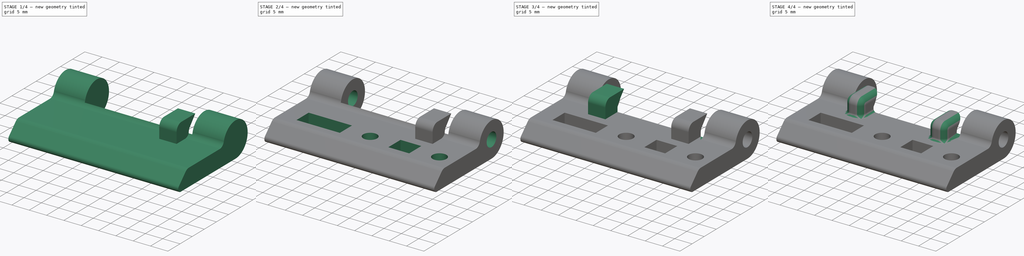
[diagram: build sequence overview — one tinted view per stage of 4, left to right]
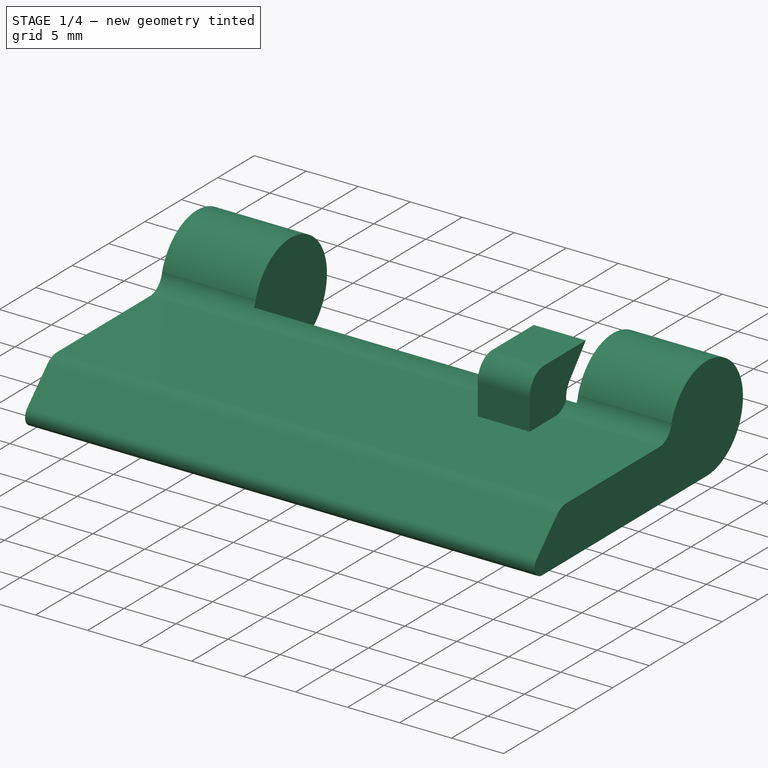
[diagram: stage 1 of 4 — iso view after this stage's code; geometry added in this stage tinted green]
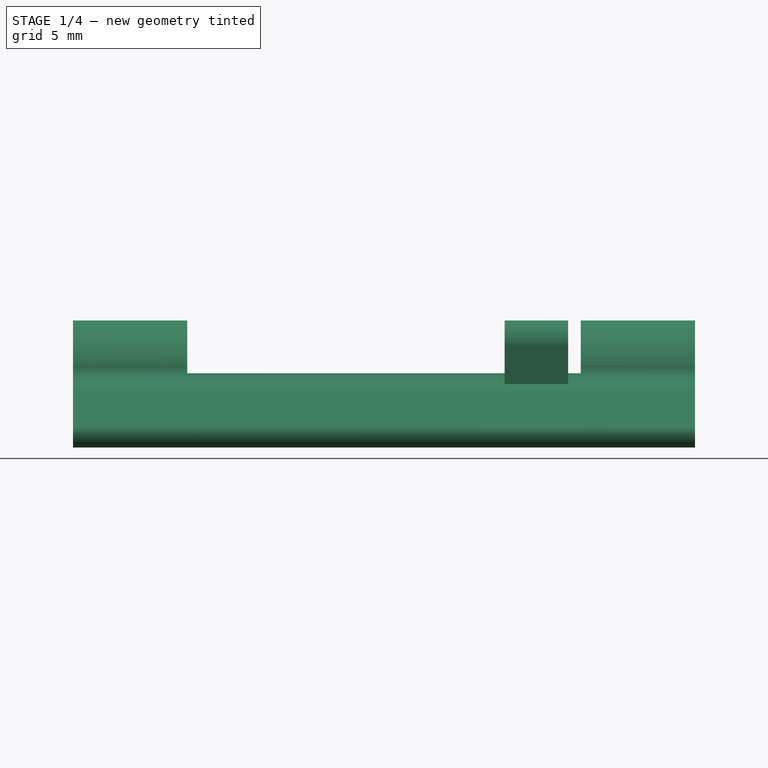
[diagram: stage 1 of 4 — front view after this stage's code; geometry added in this stage tinted green]
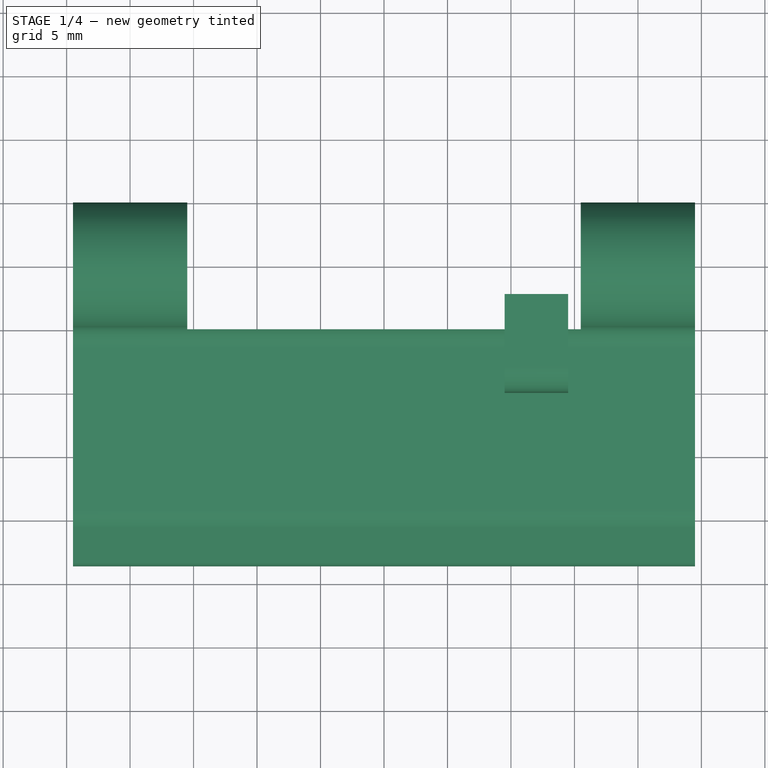
[diagram: stage 1 of 4 — top view after this stage's code; geometry added in this stage tinted green]
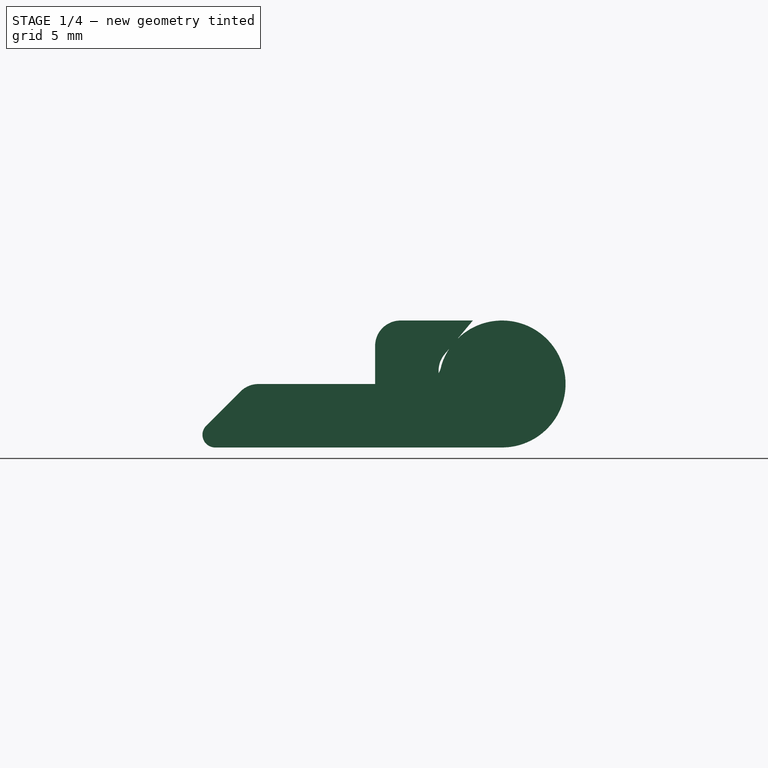
[diagram: stage 1 of 4 — right view after this stage's code; geometry added in this stage tinted green]
FCSTD DOCUMENT  (FreeCAD 0.14R3702 (Git))
Label: lcd-hinge
License: CC-BY 3.0
LicenseURL: http://creativecommons.org/licenses/by/3.0/
objects: Sketcher::SketchObject×7, PartDesign::Pocket×5, Part::Fillet×3, PartDesign::Pad×2, Part::Feature×2, Part::MultiFuse×1
note: 27 computed .brp shape members not serialized (recipe doc carries the construction recipe); baked Part::Feature solids carry a one-line shape summary decoded from their .brp

FEATURE [Sketcher::SketchObject] Sketch  label="main-body-sketch"
  Placement = pos=(0,0,0) rot=(0.57735,0.57735,0.57735;2.0944rad)
  sketch-geometry (10):
    g0: LineSegment StartX=-7.6 StartY=0 StartZ=0 EndX=15 EndY=0 EndZ=0
    g1: LineSegment StartX=-8.30711 StartY=1.70711 StartZ=0 EndX=-5.6 EndY=4.41421 EndZ=0
    g2: LineSegment StartX=-4.18579 StartY=5 StartZ=0 EndX=8.51421 EndY=5 EndZ=0
    g3: LineSegment [constr] StartX=15 StartY=5 StartZ=0 EndX=15 EndY=0 EndZ=0
    g4: ArcOfCircle CenterX=-7.6 CenterY=1 CenterZ=0 NormalX=0 NormalY=0 NormalZ=1 Radius=1 StartAngle=2.35619 EndAngle=4.71239
    g5: ArcOfCircle CenterX=-4.18579 CenterY=3 CenterZ=0 NormalX=0 NormalY=0 NormalZ=1 Radius=2 StartAngle=1.5708 EndAngle=2.35619
    g6: ArcOfCircle CenterX=15 CenterY=5 CenterZ=0 NormalX=0 NormalY=0 NormalZ=1 Radius=5 StartAngle=4.71239 EndAngle=9.12807
    g7: LineSegment [constr] StartX=10.2185 StartY=6.46186 StartZ=0 EndX=15 EndY=5 EndZ=0
    g8: ArcOfCircle CenterX=8.51421 CenterY=6.72436 CenterZ=0 NormalX=0 NormalY=0 NormalZ=1 Radius=1.72436 StartAngle=4.71239 EndAngle=6.13036
    g9: LineSegment [constr] StartX=8.51421 StartY=6.72436 StartZ=0 EndX=8.51421 EndY=5 EndZ=0
  constraints (27):
    c: Horizontal(g0)
    c: Horizontal(g2)
    c: PointOnObject(g0,g-1)
    c: Vertical(g3)
    c: Coincident(g3,g0)
    c: Tangent(g0,g4)
    c: Tangent(g1,g4)
    c: Radius(g4) = 1
    c: DistanceX(g-1,g4) = -7.6
    c: Angle(g0,g1) = 0.785398
    c: Tangent(g1,g5)
    c: Tangent(g2,g5)
    c: Radius(g5) = 2
    c: DistanceY(g2,g0) = -5
    c: Coincident(g6,g3)
    c: PointOnObject(g3,g2)
    c: Coincident(g6,g0)
    c: DistanceX(g-1,g0) = 15
    c: Coincident(g7,g3)
    c: Coincident(g7,g6)
    c: Angle(g-1,g7) = 2.84489
    c: DistanceX(g2) = 12.7
    c: Vertical(g9)
    c: Coincident(g9,g2)
    c: Coincident(g8,g9)
    c: Coincident(g8,g2)
    c: Coincident(g8,g6)
FEATURE [PartDesign::Pad] Pad  label="main-body"
  Length = 49
  Length2 = 100
  Midplane = true
  Placement = pos=(0,0,0) rot=(0.57735,0.57735,0.57735;2.0944rad)
  Sketch = -> Sketch
  Type = 0
FEATURE [Sketcher::SketchObject] Sketch001  label="cutout-1-sketch"
  Placement = pos=(0,0,0) rot=(0.707107,0.707107,0;3.14159rad)
  Support = -> Pad [Face2]
  sketch-geometry (4):
    g0: LineSegment StartX=10 StartY=15.5 StartZ=0 EndX=24 EndY=15.5 EndZ=0
    g1: LineSegment StartX=24 StartY=15.5 StartZ=0 EndX=24 EndY=-15.5 EndZ=0
    g2: LineSegment StartX=24 StartY=-15.5 StartZ=0 EndX=10 EndY=-15.5 EndZ=0
    g3: LineSegment StartX=10 StartY=-15.5 StartZ=0 EndX=10 EndY=15.5 EndZ=0
  constraints (12):
    c: Coincident(g0,g1)
    c: Coincident(g1,g2)
    c: Coincident(g2,g3)
    c: Coincident(g3,g0)
    c: Horizontal(g0)
    c: Horizontal(g2)
    c: Vertical(g1)
    c: Vertical(g3)
    c: Symmetric(g0,g2,g-1)
    c: DistanceX(g-1,g0) = 10
    c: DistanceX(g0) = 14
    c: DistanceY(g1) = -31
FEATURE [PartDesign::Pocket] Pocket  label="cutout-1"
  Length = 5
  Placement = pos=(0,0,0) rot=(0.57735,0.57735,0.57735;2.0944rad)
  Sketch = -> Sketch001
  Type = 1
FEATURE [Sketcher::SketchObject] Sketch006  label="part2-main-sketch"
  Placement = pos=(9.5,0,0) rot=(0.57735,0.57735,0.57735;2.0944rad)
  sketch-geometry (7):
    g0: LineSegment StartX=12.7 StartY=10 StartZ=0 EndX=7 EndY=10 EndZ=0
    g1: LineSegment StartX=5 StartY=8 StartZ=0 EndX=5 EndY=5 EndZ=0
    g2: LineSegment StartX=5 StartY=5 StartZ=0 EndX=10 EndY=5 EndZ=0
    g3: LineSegment StartX=10 StartY=5 StartZ=0 EndX=10 EndY=6.05432 EndZ=0
    g4: LineSegment StartX=10.4679 StartY=7.3399 StartZ=0 EndX=12.7 EndY=10 EndZ=0
    g5: ArcOfCircle CenterX=7 CenterY=8 CenterZ=0 NormalX=0 NormalY=0 NormalZ=1 Radius=2 StartAngle=1.5708 EndAngle=3.14159
    g6: ArcOfCircle CenterX=12 CenterY=6.05432 CenterZ=0 NormalX=0 NormalY=0 NormalZ=1 Radius=2 StartAngle=2.44346 EndAngle=3.14159
  constraints (19):
    c: Horizontal(g0)
    c: Coincident(g1,g2)
    c: Horizontal(g2)
    c: Coincident(g2,g3)
    c: Vertical(g3)
    c: Coincident(g4,g0)
    c: DistanceY(g-1,g1) = 5
    c: Vertical(g1)
    c: DistanceX(g-1,g2) = 10
    c: DistanceX(g2) = 5
    c: DistanceY(g0,g2) = -5
    c: Tangent(g0,g5)
    c: Tangent(g1,g5)
    c: Radius(g5) = 2
    c: DistanceX(g0,g1) = -7.7
    c: Angle(g4,g-1) = 2.26893
    c: Tangent(g3,g6)
    c: Tangent(g4,g6)
    c: Radius(g6) = 2
FEATURE [PartDesign::Pad] Pad001  label="part2-main"
  Length = 5
  Length2 = 100
  Placement = pos=(9.5,0,0) rot=(0.57735,0.57735,0.57735;2.0944rad)
  Sketch = -> Sketch006
  Type = 0
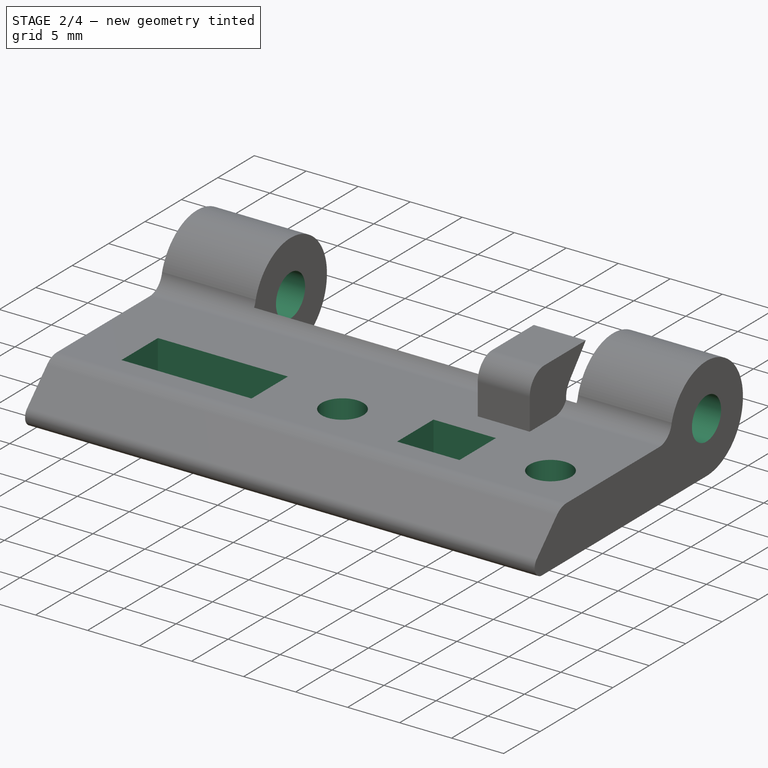
[diagram: stage 2 of 4 — iso view after this stage's code; geometry added in this stage tinted green]
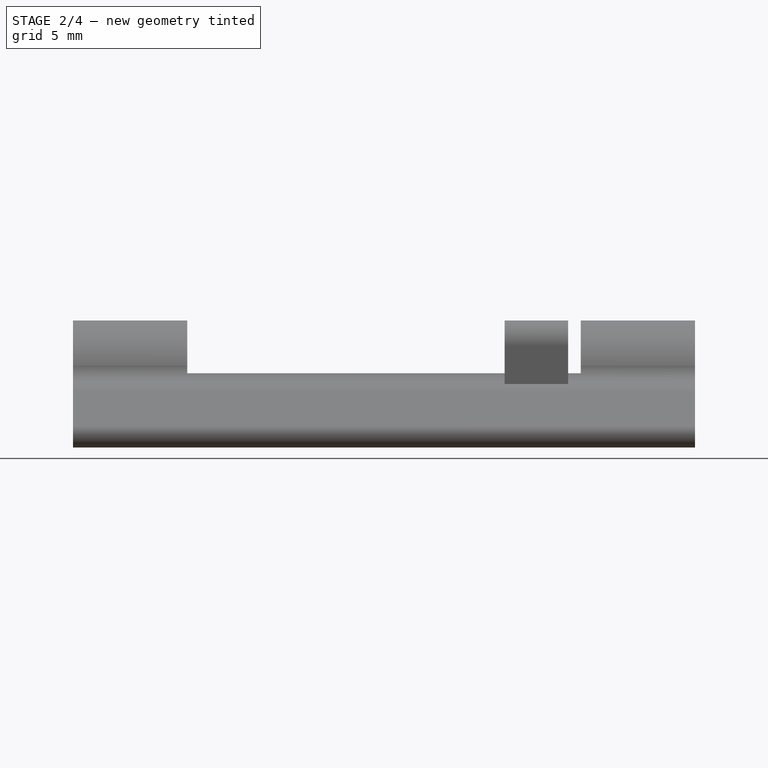
[diagram: stage 2 of 4 — front view after this stage's code; geometry added in this stage tinted green]
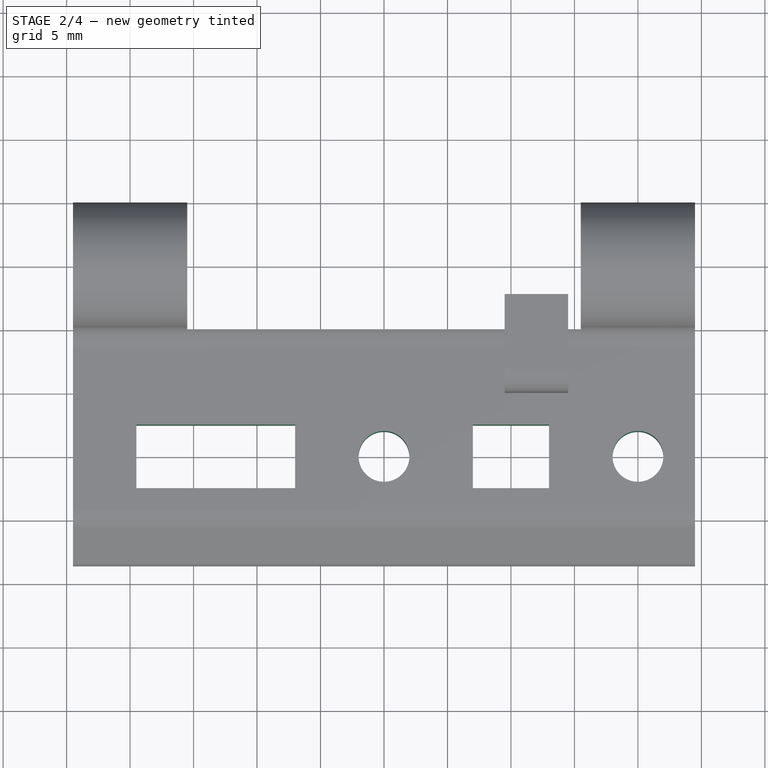
[diagram: stage 2 of 4 — top view after this stage's code; geometry added in this stage tinted green]
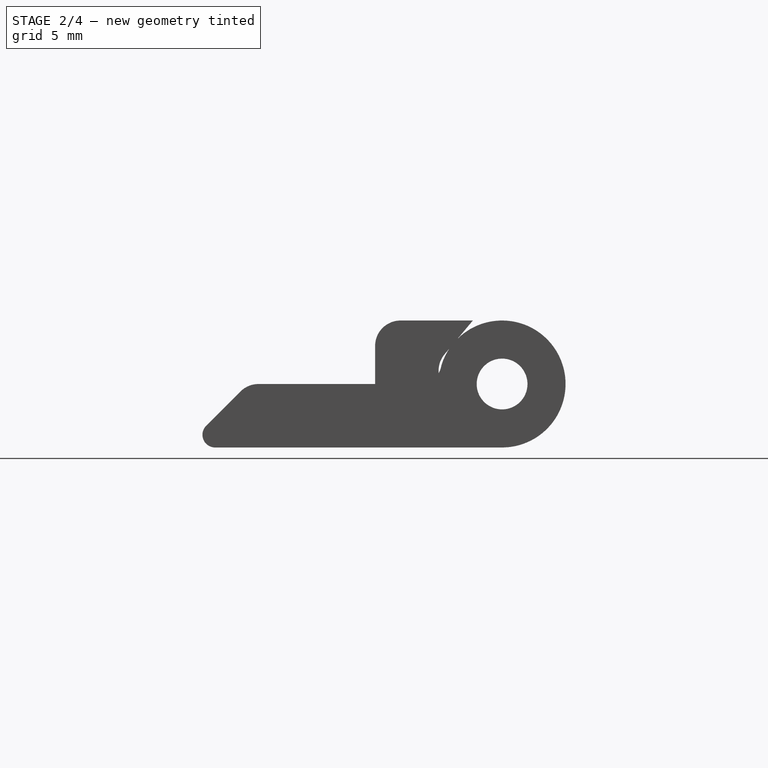
[diagram: stage 2 of 4 — right view after this stage's code; geometry added in this stage tinted green]
FEATURE [Sketcher::SketchObject] Sketch002  label="top-drills-sketch"
  Placement = pos=(0,0,5) rot=(0,0,-1;1.5708rad)
  Support = -> Pocket [Face13]
  sketch-geometry (2):
    g0: Circle CenterX=0 CenterY=0 CenterZ=0 NormalX=0 NormalY=0 NormalZ=1 Radius=2
    g1: Circle CenterX=0 CenterY=20 CenterZ=0 NormalX=0 NormalY=0 NormalZ=1 Radius=2
  constraints (5):
    c: Coincident(g0,g-1)
    c: Radius(g0) = 2
    c: PointOnObject(g1,g-2)
    c: Equal(g0,g1)
    c: DistanceY(g-1,g1) = 20
FEATURE [PartDesign::Pocket] Pocket001  label="top-drills"
  Length = 5
  Placement = pos=(0,0,0) rot=(0.57735,0.57735,0.57735;2.0944rad)
  Sketch = -> Sketch002
  Type = 1
FEATURE [Sketcher::SketchObject] Sketch003  label="cutout-2-sketch"
  Placement = pos=(0,0,5) rot=(0,0,-1;1.5708rad)
  Support = -> Pocket001 [Face15]
  sketch-geometry (8):
    g0: LineSegment StartX=-2.5 StartY=13 StartZ=0 EndX=2.5 EndY=13 EndZ=0
    g1: LineSegment StartX=2.5 StartY=13 StartZ=0 EndX=2.5 EndY=7 EndZ=0
    g2: LineSegment StartX=2.5 StartY=7 StartZ=0 EndX=-2.5 EndY=7 EndZ=0
    g3: LineSegment StartX=-2.5 StartY=7 StartZ=0 EndX=-2.5 EndY=13 EndZ=0
    g4: LineSegment StartX=-2.5 StartY=-7 StartZ=0 EndX=2.5 EndY=-7 EndZ=0
    g5: LineSegment StartX=2.5 StartY=-7 StartZ=0 EndX=2.5 EndY=-19.5 EndZ=0
    g6: LineSegment StartX=2.5 StartY=-19.5 StartZ=0 EndX=-2.5 EndY=-19.5 EndZ=0
    g7: LineSegment StartX=-2.5 StartY=-19.5 StartZ=0 EndX=-2.5 EndY=-7 EndZ=0
  constraints (24):
    c: Coincident(g0,g1)
    c: Coincident(g1,g2)
    c: Coincident(g2,g3)
    c: Coincident(g3,g0)
    c: Horizontal(g0)
    c: Horizontal(g2)
    c: Vertical(g1)
    c: Vertical(g3)
    c: Symmetric(g0,g0,g-2)
    c: Coincident(g4,g5)
    c: Coincident(g5,g6)
    c: Coincident(g6,g7)
    c: Coincident(g7,g4)
    c: Horizontal(g4)
    c: Horizontal(g6)
    c: Vertical(g5)
    c: Vertical(g7)
    c: Symmetric(g4,g4,g-2)
    c: Equal(g4,g2)
    c: DistanceY(g1) = -6
    c: DistanceX(g0) = 5
    c: DistanceY(g1) = 7
    c: DistanceY(g-1,g4) = -7
    c: DistanceY(g5) = -12.5
FEATURE [PartDesign::Pocket] Pocket002  label="cutout-2"
  Length = 5
  Placement = pos=(0,0,0) rot=(0.57735,0.57735,0.57735;2.0944rad)
  Sketch = -> Sketch003
  Type = 1
FEATURE [Sketcher::SketchObject] Sketch004  label="hinge-drill-sketch"
  Placement = pos=(24.5,0,0) rot=(0.57735,0.57735,0.57735;2.0944rad)
  Support = -> Pocket002 [Face5]
  sketch-geometry (1):
    g0: Circle CenterX=15 CenterY=5 CenterZ=0 NormalX=0 NormalY=0 NormalZ=1 Radius=2
  constraints (3):
    c: DistanceY(g-1,g0) = 5
    c: DistanceX(g-1,g0) = 15
    c: Radius(g0) = 2
FEATURE [PartDesign::Pocket] Pocket003  label="hinge-drill"
  Length = 5
  Placement = pos=(0,0,0) rot=(0.57735,0.57735,0.57735;2.0944rad)
  Sketch = -> Sketch004
  Type = 1
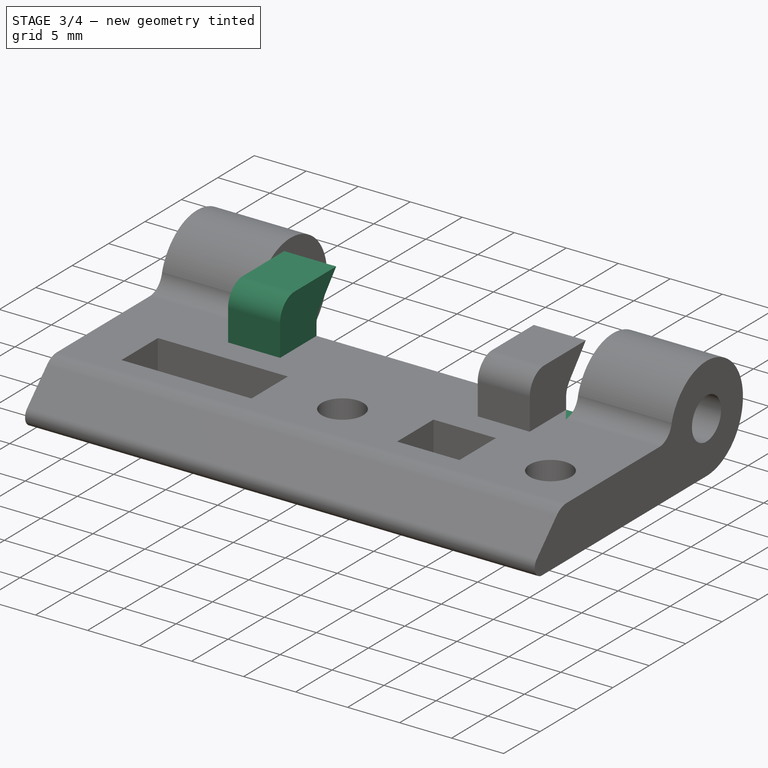
[diagram: stage 3 of 4 — iso view after this stage's code; geometry added in this stage tinted green]
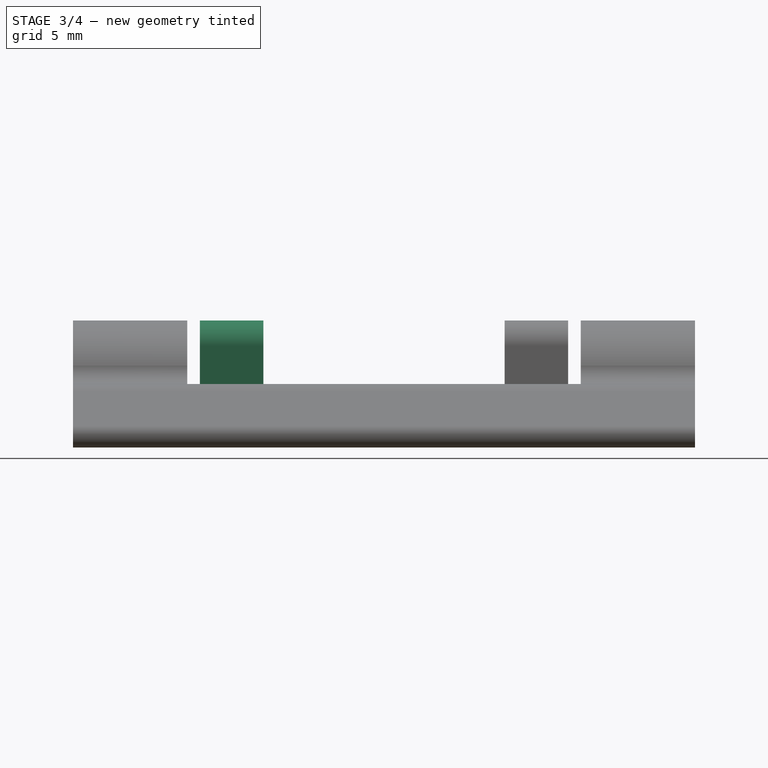
[diagram: stage 3 of 4 — front view after this stage's code; geometry added in this stage tinted green]
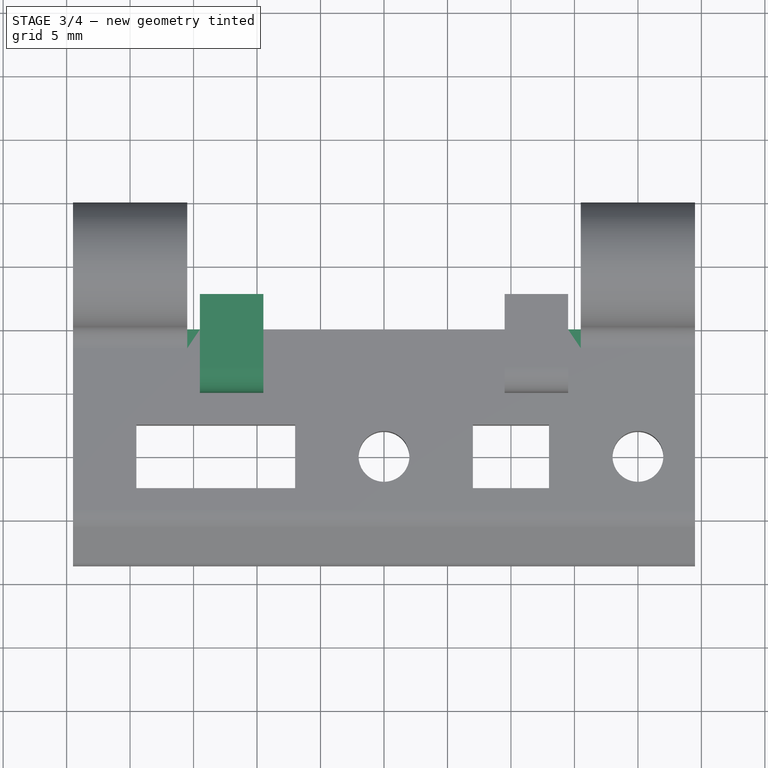
[diagram: stage 3 of 4 — top view after this stage's code; geometry added in this stage tinted green]
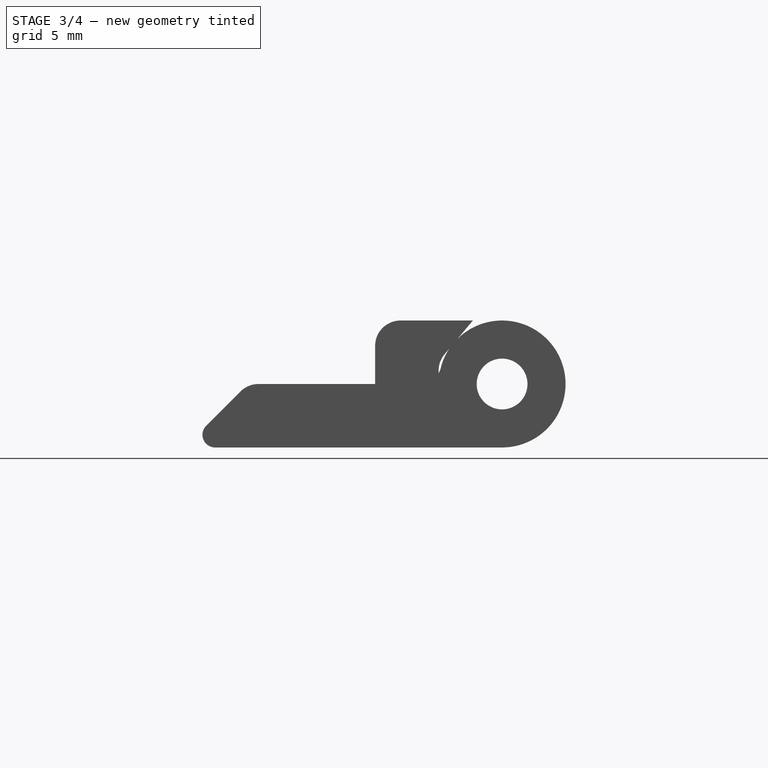
[diagram: stage 3 of 4 — right view after this stage's code; geometry added in this stage tinted green]
FEATURE [Sketcher::SketchObject] Sketch005  label="cutout-3-sketch"
  Placement = pos=(0,10,0) rot=(0.57735,0.57735,0.57735;4.18879rad)
  Support = -> Pocket003 [Face10]
  sketch-geometry (4):
    g0: LineSegment StartX=5 StartY=15.5 StartZ=0 EndX=6 EndY=15.5 EndZ=0
    g1: LineSegment StartX=6 StartY=15.5 StartZ=0 EndX=6 EndY=-15.5 EndZ=0
    g2: LineSegment StartX=6 StartY=-15.5 StartZ=0 EndX=5 EndY=-15.5 EndZ=0
    g3: LineSegment StartX=5 StartY=-15.5 StartZ=0 EndX=5 EndY=15.5 EndZ=0
  constraints (9):
    c: Coincident(g0,g1)
    c: Coincident(g1,g2)
    c: Coincident(g2,g3)
    c: Coincident(g3,g0)
    c: Horizontal(g0)
    c: Horizontal(g2)
    c: Vertical(g1)
    c: Vertical(g3)
    c: DistanceX(g0) = 1
FEATURE [PartDesign::Pocket] Pocket004  label="cutout-3"
  Length = 5
  Placement = pos=(0,0,0) rot=(0.57735,0.57735,0.57735;2.0944rad)
  Sketch = -> Sketch005
  Type = 0
FEATURE [Part::Feature] Pad001001  label="part2-main2"
  Placement = pos=(-14.5,0,0) rot=(0.57735,0.57735,0.57735;2.0944rad)
  shape: bbox 5 x 7.7 x 5 mm, 9 faces (baked)
FEATURE [Part::MultiFuse] Fusion
  Shapes = -> [Pad001001,Pad001,Pocket004]
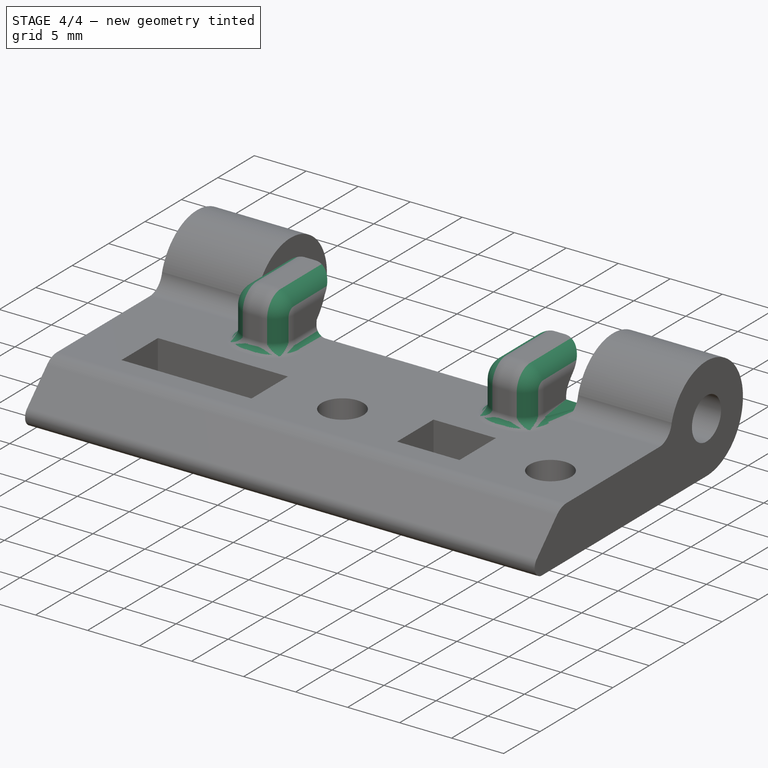
[diagram: stage 4 of 4 — iso view after this stage's code; geometry added in this stage tinted green]
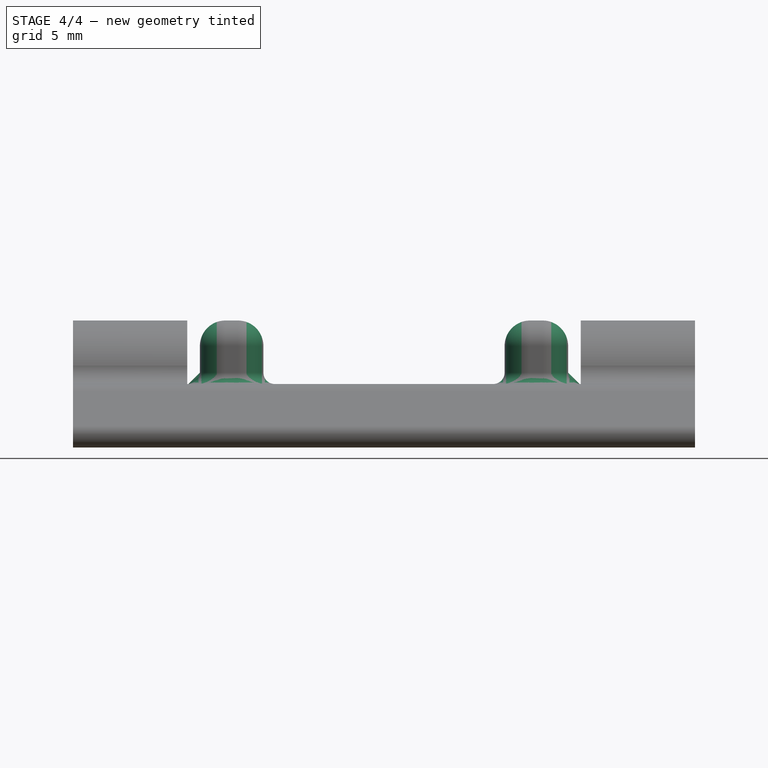
[diagram: stage 4 of 4 — front view after this stage's code; geometry added in this stage tinted green]
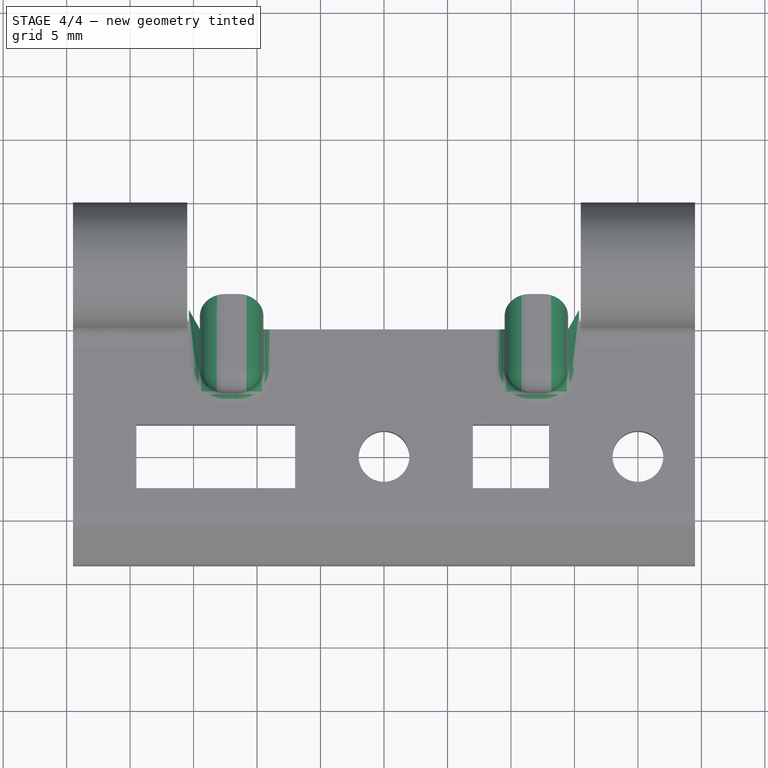
[diagram: stage 4 of 4 — top view after this stage's code; geometry added in this stage tinted green]
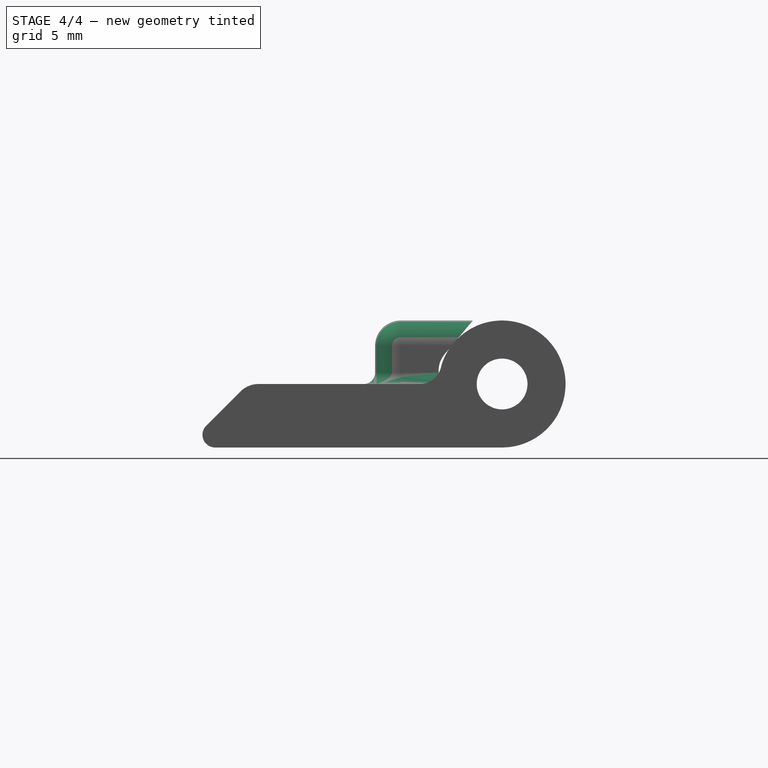
[diagram: stage 4 of 4 — right view after this stage's code; geometry added in this stage tinted green]
FEATURE [Part::Fillet] Fillet
  Base = -> Fusion
  Edges = 2 edges r=1: [Edge41,Edge45]
FEATURE [Part::Fillet] Fillet001
  Base = -> Fillet
  Edges = 8 edges r=2: [Edge96,Edge97,Edge101,Edge102,Edge109,Edge110,Edge113,Edge114]
FEATURE [Part::Fillet] Fillet002
  Base = -> Fillet001
  Edges = 2 edges r=0.9: [Edge1,Edge20]
FEATURE [Part::Feature] Fillet002001  label="lcd-hinge-final"
  shape: bbox 49 x 28.6 x 10 mm, 64 faces (baked)
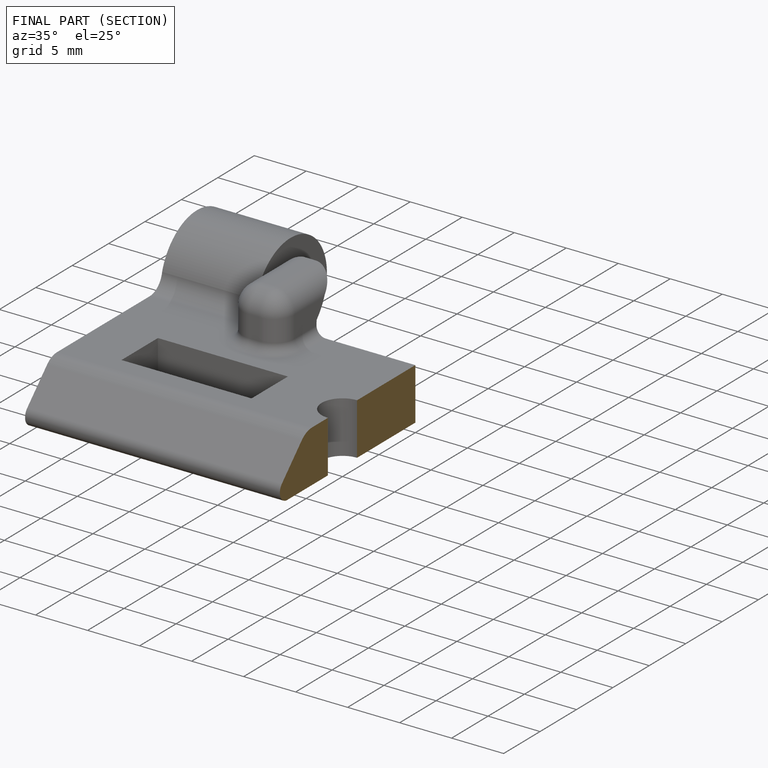
[diagram: finished part — half-section view (interior)]
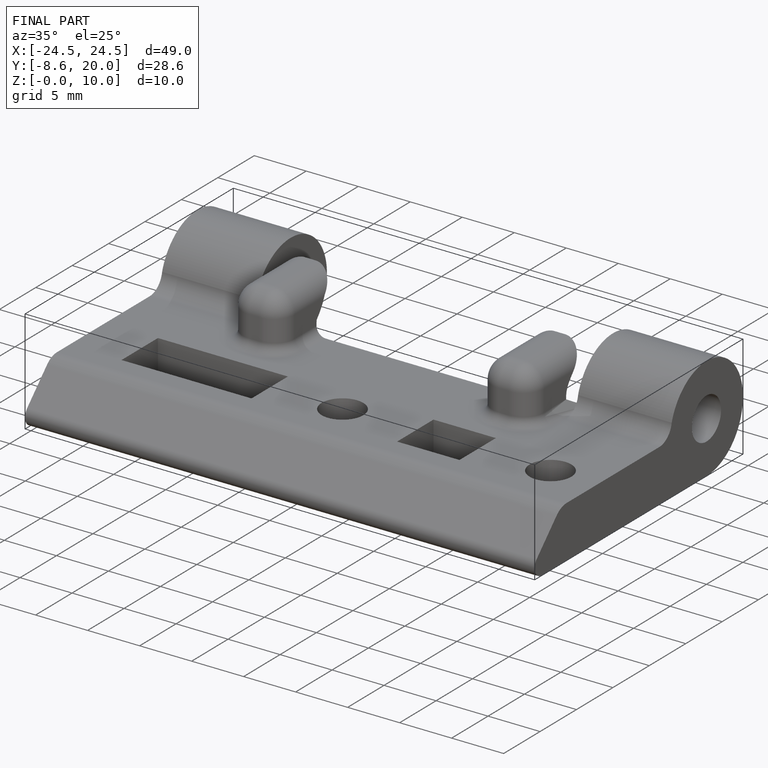
[diagram: finished part — iso view with bounding-box wireframe]
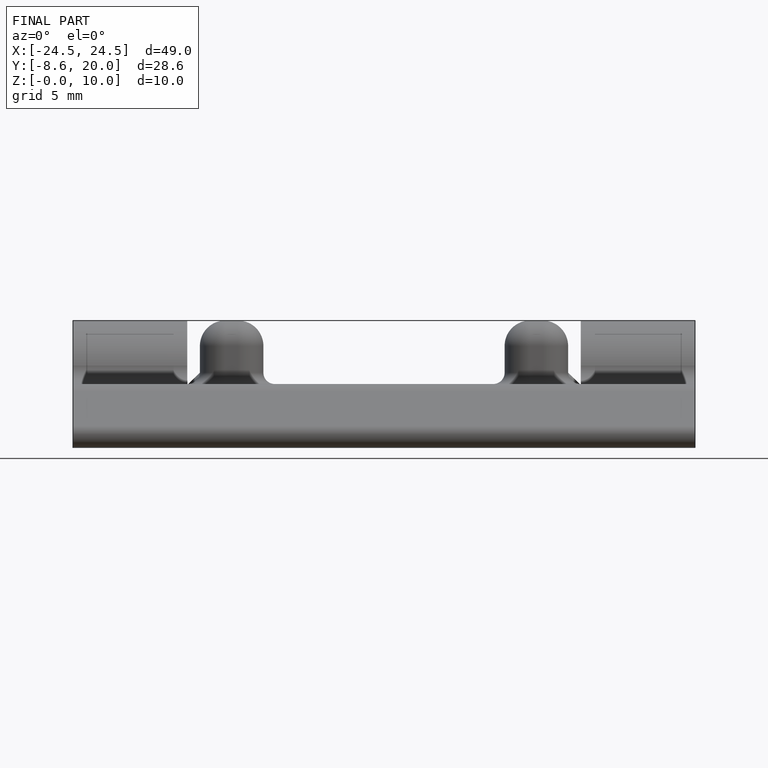
[diagram: finished part — front view with bounding-box wireframe]
